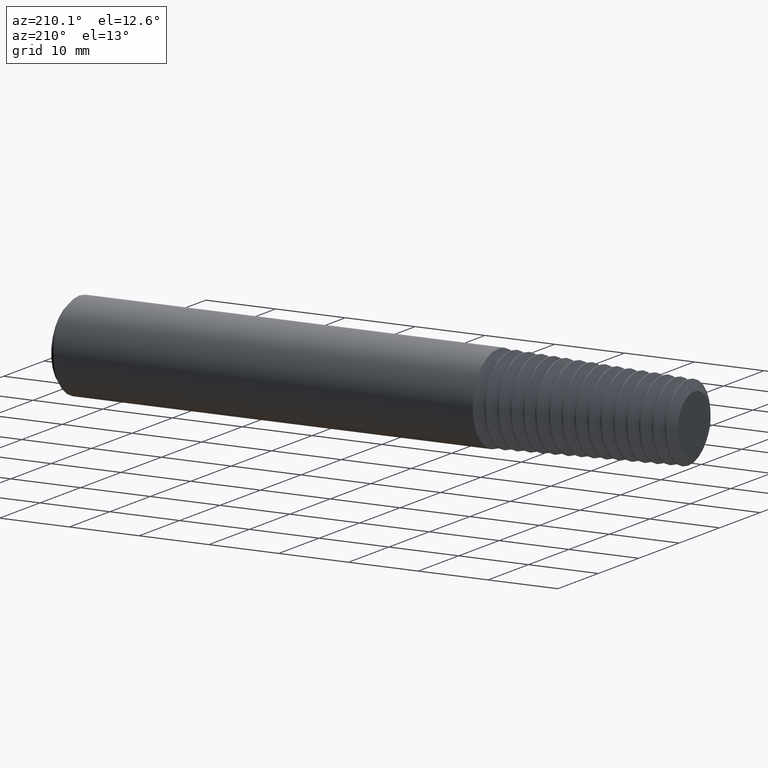
[diagram: clean part render]
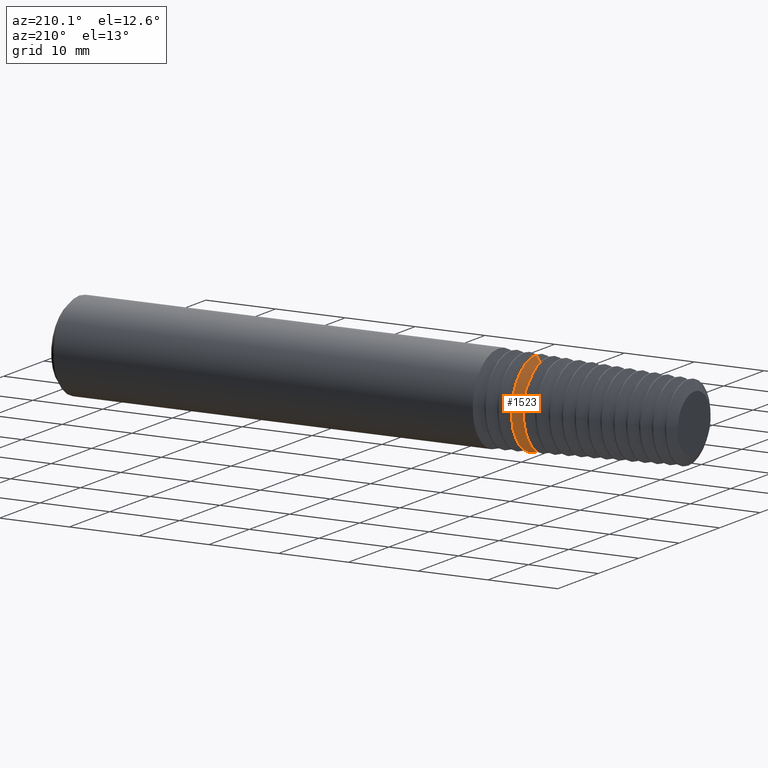
[diagram: same view with one face highlighted and labeled with its STEP entity id]
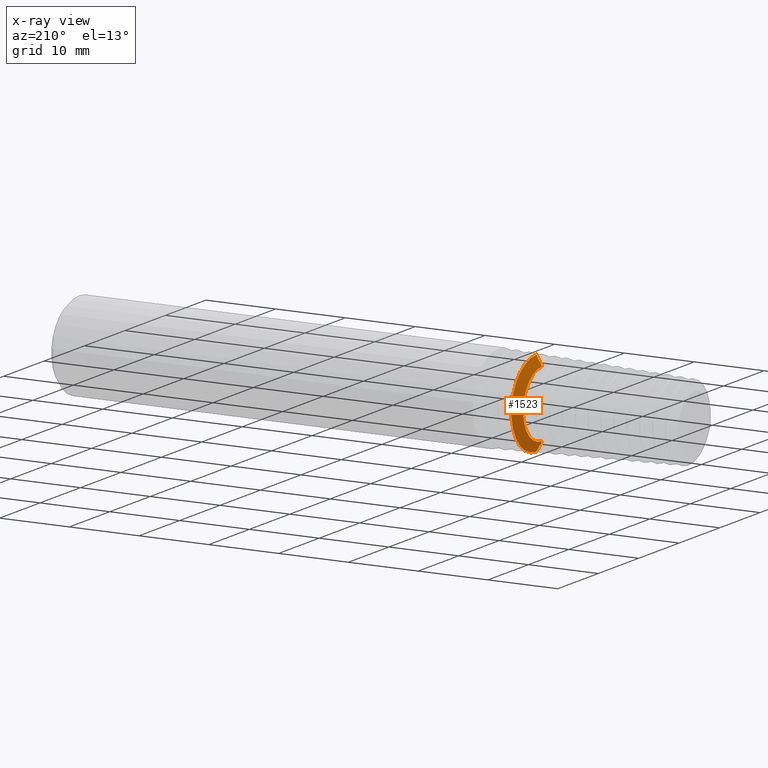
[diagram: x-ray of the same camera — body ghosted, the highlighted face saturated]
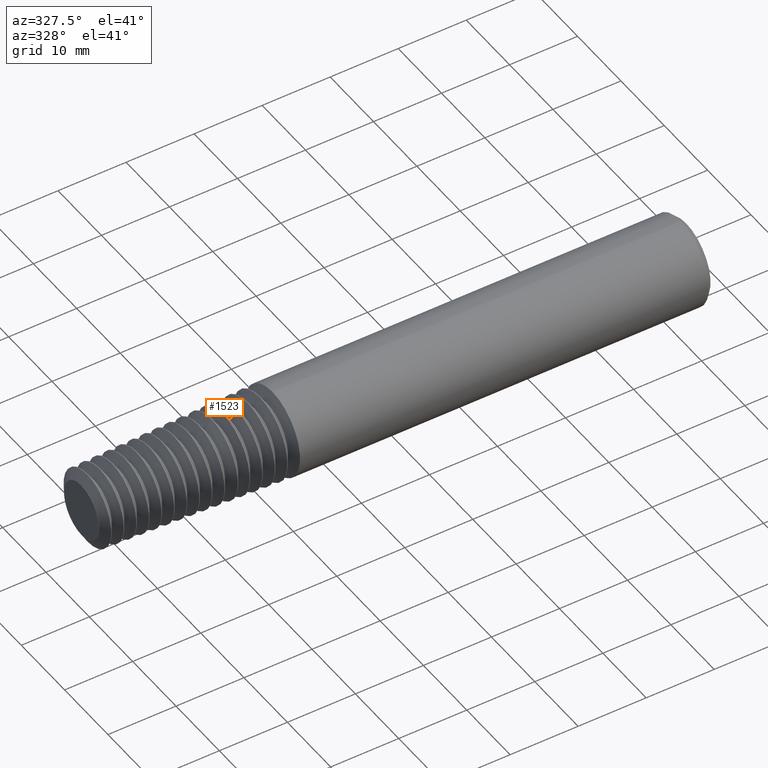
[diagram: same view with one face highlighted and labeled with its STEP entity id]
A machine part, auxiliary view. The second image highlights one B-rep face of the part: STEP entity #1523.
The next image is the same camera in x-ray: the body ghosted, the highlighted face saturated — about 0% of this face is hidden behind the body in this view.
A second angle (auxiliary view) of the same face is appended — the face is thin or edge-on in the first view.
In plain terms, the highlighted conical surface has half-angle 60.258 deg.
Its self-contained STEP definition (entity closure, byte-faithful):
#89 = EDGE_CURVE ( 'NONE', #3140, #1453, #992, .T. ) ;
#187 = DIRECTION ( 'NONE',  ( 0.0000000000000000000, 0.0000000000000000000, -1.000000000000000000 ) ) ;
#431 = EDGE_LOOP ( 'NONE', ( #1794, #2686, #1666, #2255 ) ) ;
#433 = DIRECTION ( 'NONE',  ( 1.000000000000000000, -0.0000000000000000000, -0.0000000000000000000 ) ) ;
#457 = CARTESIAN_POINT ( 'NONE',  ( -0.1168571426156704285, 0.0000000000000000000, 0.0000000000000000000 ) ) ;
#580 = FACE_OUTER_BOUND ( 'NONE', #431, .T. ) ;
#725 = EDGE_CURVE ( 'NONE', #1453, #3159, #1824, .T. ) ;
#726 = CARTESIAN_POINT ( 'NONE',  ( -0.08474347288736486239, 2.972061304691521915E-17, 0.2426872226964367774 ) ) ;
#949 = CIRCLE ( 'NONE', #1957, 0.1864828261326345882 ) ;
#992 = LINE ( 'NONE', #2580, #1585 ) ;
#1063 = DIRECTION ( 'NONE',  ( 0.0000000000000000000, 0.0000000000000000000, -1.000000000000000000 ) ) ;
#1187 = DIRECTION ( 'NONE',  ( 0.0000000000000000000, 0.0000000000000000000, -1.000000000000000000 ) ) ;
#1453 = VERTEX_POINT ( 'NONE', #2171 ) ;
#1523 = ADVANCED_FACE ( 'NONE', ( #580 ), #3196, .T. ) ;
#1585 = VECTOR ( 'NONE', #2845, 39.37007874015748143 ) ;
#1637 = VERTEX_POINT ( 'NONE', #1877 ) ;
#1666 = ORIENTED_EDGE ( 'NONE', *, *, #725, .F. ) ;
#1715 = LINE ( 'NONE', #2706, #2394 ) ;
#1794 = ORIENTED_EDGE ( 'NONE', *, *, #3157, .T. ) ;
#1796 = CARTESIAN_POINT ( 'NONE',  ( -0.08474347288736486239, 0.0000000000000000000, 0.0000000000000000000 ) ) ;
#1824 = CIRCLE ( 'NONE', #2607, 0.2426872226964367774 ) ;
#1877 = CARTESIAN_POINT ( 'NONE',  ( -0.1168571426156704285, 2.283755961192833365E-17, 0.1864828261326345882 ) ) ;
#1957 = AXIS2_PLACEMENT_3D ( 'NONE', #457, #433, #1187 ) ;
#2171 = CARTESIAN_POINT ( 'NONE',  ( -0.08474347288736486239, 0.0000000000000000000, -0.2426872226964367774 ) ) ;
#2185 = DIRECTION ( 'NONE',  ( 1.000000000000000000, -0.0000000000000000000, -0.0000000000000000000 ) ) ;
#2255 = ORIENTED_EDGE ( 'NONE', *, *, #89, .F. ) ;
#2394 = VECTOR ( 'NONE', #3183, 39.37007874015748143 ) ;
#2465 = CARTESIAN_POINT ( 'NONE',  ( -0.1168571426156704285, 0.0000000000000000000, -0.1864828261326345882 ) ) ;
#2541 = EDGE_CURVE ( 'NONE', #1637, #3159, #1715, .T. ) ;
#2577 = AXIS2_PLACEMENT_3D ( 'NONE', #1796, #2597, #1063 ) ;
#2580 = CARTESIAN_POINT ( 'NONE',  ( -0.08474347288736486239, 0.0000000000000000000, -0.2426872226964367774 ) ) ;
#2597 = DIRECTION ( 'NONE',  ( 1.000000000000000000, -0.0000000000000000000, -0.0000000000000000000 ) ) ;
#2607 = AXIS2_PLACEMENT_3D ( 'NONE', #2729, #2185, #187 ) ;
#2686 = ORIENTED_EDGE ( 'NONE', *, *, #2541, .T. ) ;
#2706 = CARTESIAN_POINT ( 'NONE',  ( -0.08474347288736486239, 2.972061304691521915E-17, 0.2426872226964367774 ) ) ;
#2729 = CARTESIAN_POINT ( 'NONE',  ( -0.08474347288736486239, 0.0000000000000000000, 0.0000000000000000000 ) ) ;
#2845 = DIRECTION ( 'NONE',  ( 0.4961025066984239840, 0.0000000000000000000, -0.8682639592010831242 ) ) ;
#3140 = VERTEX_POINT ( 'NONE', #2465 ) ;
#3157 = EDGE_CURVE ( 'NONE', #3140, #1637, #949, .T. ) ;
#3159 = VERTEX_POINT ( 'NONE', #726 ) ;
#3183 = DIRECTION ( 'NONE',  ( 0.4961025066984239840, 1.063316678450614563E-16, 0.8682639592010831242 ) ) ;
#3196 = CONICAL_SURFACE ( 'NONE', #2577, 0.2426872226964367774, 1.051692172248252399 ) ;